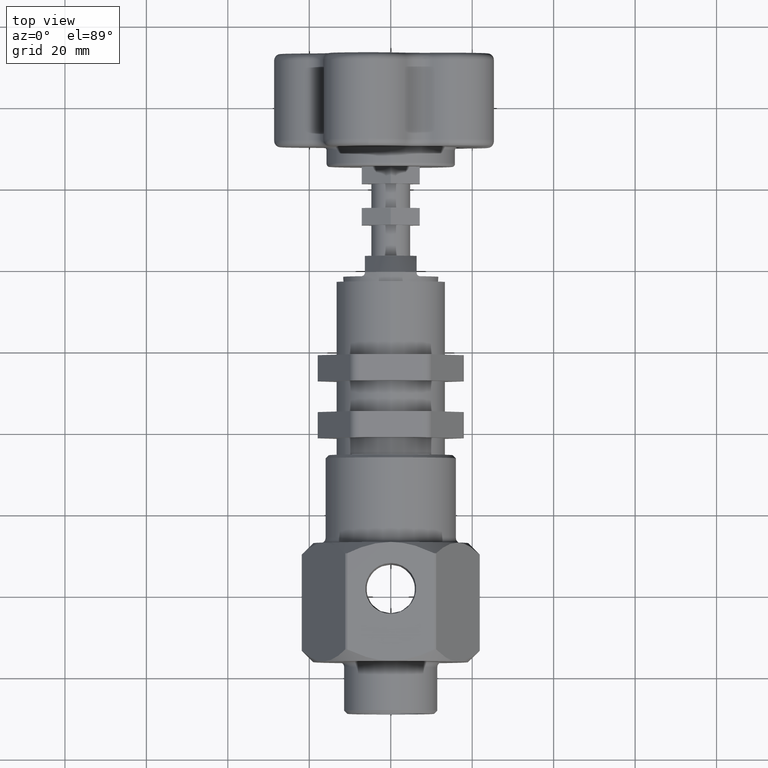
[diagram: clean part render]
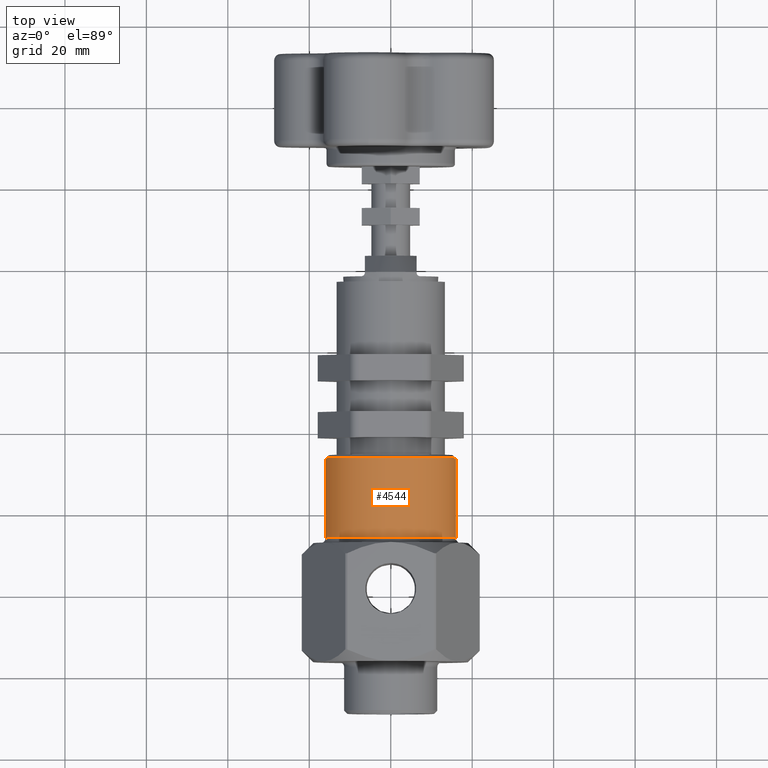
[diagram: same view with one face highlighted and labeled with its STEP entity id]
A machine part, top view. The second image highlights one B-rep face of the part: STEP entity #4544.
In plain terms, the highlighted cylindrical surface (partial cylindrical patch) has radius 16.002 mm, axis along (-0, 1, -0).
Its self-contained STEP definition (entity closure, byte-faithful):
#109 = EDGE_CURVE ( 'NONE', #7021, #4712, #5773, .T. ) ;
#279 = DIRECTION ( 'NONE',  ( -5.302876193624532100E-017, 1.000000000000000000, -3.061616997868382400E-017 ) ) ;
#330 = LINE ( 'NONE', #6611, #5195 ) ;
#769 = AXIS2_PLACEMENT_3D ( 'NONE', #3493, #7935, #4139 ) ;
#777 = DIRECTION ( 'NONE',  ( -1.000000000000000000, -5.420333320762422100E-017, 1.665334536937734300E-016 ) ) ;
#844 = EDGE_LOOP ( 'NONE', ( #5082, #3241, #6409, #4904 ) ) ;
#920 = VECTOR ( 'NONE', #3595, 39.37007874015748100 ) ;
#1315 = CARTESIAN_POINT ( 'NONE',  ( 0.6300000000000003400, -0.2349999999999988200, -3.235575297759057700E-017 ) ) ;
#1335 = AXIS2_PLACEMENT_3D ( 'NONE', #7480, #4912, #6882 ) ;
#1404 = EDGE_CURVE ( 'NONE', #7021, #5251, #2455, .T. ) ;
#1449 = AXIS2_PLACEMENT_3D ( 'NONE', #6641, #1541, #777 ) ;
#1541 = DIRECTION ( 'NONE',  ( -5.302876193624532700E-017, 1.000000000000000000, -3.061616997868382400E-017 ) ) ;
#2455 = CIRCLE ( 'NONE', #1449, 0.6300000000000005600 ) ;
#2492 = EDGE_CURVE ( 'NONE', #5251, #7228, #330, .T. ) ;
#2968 = CYLINDRICAL_SURFACE ( 'NONE', #1335, 0.6300000000000005600 ) ;
#3241 = ORIENTED_EDGE ( 'NONE', *, *, #2492, .T. ) ;
#3254 = CARTESIAN_POINT ( 'NONE',  ( 0.6300000000000005600, 0.5350000000000007000, -1.212957267656671300E-016 ) ) ;
#3493 = CARTESIAN_POINT ( 'NONE',  ( 5.777712284912032600E-018, 0.5350000000000007000, -1.637965093858976700E-017 ) ) ;
#3595 = DIRECTION ( 'NONE',  ( -5.302876193624532100E-017, 1.000000000000000000, -3.061616997868382400E-017 ) ) ;
#3764 = FACE_OUTER_BOUND ( 'NONE', #844, .T. ) ;
#4139 = DIRECTION ( 'NONE',  ( 1.000000000000000000, 0.0000000000000000000, -1.665334536937734300E-016 ) ) ;
#4544 = ADVANCED_FACE ( 'NONE', ( #3764 ), #2968, .T. ) ;
#4712 = VERTEX_POINT ( 'NONE', #6897 ) ;
#4904 = ORIENTED_EDGE ( 'NONE', *, *, #109, .F. ) ;
#4912 = DIRECTION ( 'NONE',  ( -5.302876193624532700E-017, 1.000000000000000000, -3.061616997868382400E-017 ) ) ;
#5005 = CARTESIAN_POINT ( 'NONE',  ( -0.6300000000000005600, -0.2349999999999989000, 1.121108757720740900E-016 ) ) ;
#5082 = ORIENTED_EDGE ( 'NONE', *, *, #1404, .T. ) ;
#5195 = VECTOR ( 'NONE', #279, 39.37007874015748100 ) ;
#5251 = VERTEX_POINT ( 'NONE', #1315 ) ;
#5773 = LINE ( 'NONE', #7682, #920 ) ;
#6137 = EDGE_CURVE ( 'NONE', #7228, #4712, #8000, .T. ) ;
#6409 = ORIENTED_EDGE ( 'NONE', *, *, #6137, .T. ) ;
#6611 = CARTESIAN_POINT ( 'NONE',  ( 0.6300000000000005600, 1.033450559264014000, -5.940362546778088600E-017 ) ) ;
#6641 = CARTESIAN_POINT ( 'NONE',  ( 4.660985897582091400E-017, -0.2349999999999988500, 7.194799944996730000E-018 ) ) ;
#6882 = DIRECTION ( 'NONE',  ( -1.000000000000000000, 0.0000000000000000000, 1.665334536937734300E-016 ) ) ;
#6897 = CARTESIAN_POINT ( 'NONE',  ( -0.6300000000000005600, 0.5350000000000007000, 1.656891732347709200E-016 ) ) ;
#7021 = VERTEX_POINT ( 'NONE', #5005 ) ;
#7228 = VERTEX_POINT ( 'NONE', #3254 ) ;
#7480 = CARTESIAN_POINT ( 'NONE',  ( -2.065450375928766600E-017, 1.033450559264014000, -3.164029798698684600E-017 ) ) ;
#7682 = CARTESIAN_POINT ( 'NONE',  ( -0.6300000000000005600, 1.033450559264014000, 7.327577784009050900E-017 ) ) ;
#7935 = DIRECTION ( 'NONE',  ( 5.302876193624532700E-017, -1.000000000000000000, 3.061616997868382400E-017 ) ) ;
#8000 = CIRCLE ( 'NONE', #769, 0.6300000000000005600 ) ;